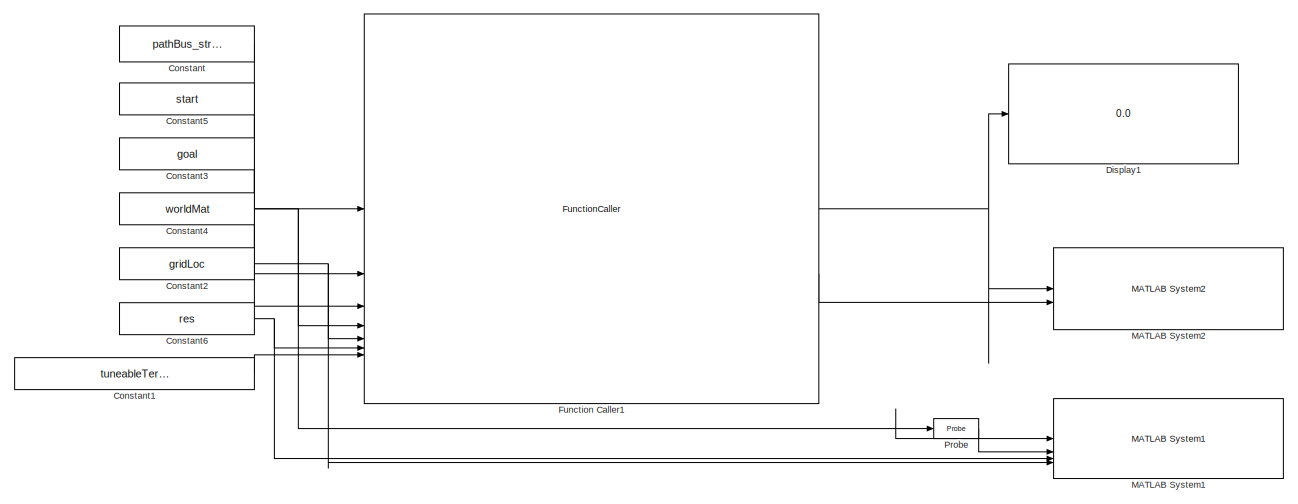
[diagram: root canvas - part 1/2, most of the canvas]
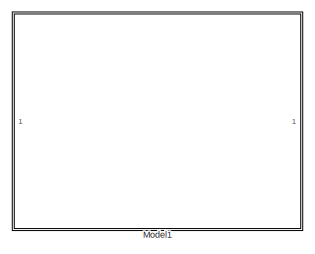
[diagram: root canvas - part 2/2, middle right region]
MODEL slx_bed5b2f71cb7
KIND model
CONFIG AbsTol = auto
CONFIG EnableMultiTasking = off
CONFIG FixedStep = auto
CONFIG InitFcn = routePlanSetup
CONFIG MaxStep = auto
CONFIG MinStep = auto
CONFIG RelTol = 1e-3
CONFIG SampleTimeConstraint = Unconstrained
CONFIG SolverName = FixedStepDiscrete
CONFIG StartTime = 0.0
CONFIG StopTime = 0
BLOCK [Constant] Constant
  OutDataTypeStr = Bus: pathList_fixed_bus
  SampleTime = -1
  Value = pathBus_struct
  VectorParams1D = off
BLOCK [Constant] Constant1
  Value = tuneableTerrainAwareParams.MinTurningRadius
BLOCK [Constant] Constant2
  Value = gridLoc
BLOCK [Constant] Constant3
  Value = goal
BLOCK [Constant] Constant4
  Value = worldMat
BLOCK [Constant] Constant5
  Value = start
BLOCK [Constant] Constant6
  Value = res
BLOCK [Display] Display1
  Decimation = 1
BLOCK [FunctionCaller] Function Caller1
  FunctionPrototype = [refPath,nRefPathRows] = planRoute(pathList,start,goal,worldMat,gridLoc,res,minTurnRadius)
  InputArgumentSpecifications = <Enter example>
  OutputArgumentSpecifications = <Enter example>
BLOCK [Reference] MATLAB System1  REF=roshelperlib/MATLAB System1  (lib defined in slx_3328ea0e13a5)
  SourceBlock = roshelperlib/MATLAB System1
  SourceType = exampleHelperMapVisualizerSys
BLOCK [Reference] MATLAB System2  REF=roshelperlib/MATLAB System2  (lib defined in slx_3328ea0e13a5)
  SourceBlock = roshelperlib/MATLAB System2
  SourceType = exampleHelperPathVisualizerSys
BLOCK [ModelReference] Model1
  ModelNameDialog = extractLocalMap_simfcnsvr.slx
  ModelReferenceVersion = 2.0
  ScheduleRates = on
BLOCK [Probe] Probe
  ProbeComplexSignal = off
  ProbeSampleTime = off
  ProbeSignalDimensions = on
  ProbeWidth = off
LINE Constant1:1 -> Function Caller1:7
NET Constant2:1 -> Function Caller1:5, MATLAB System1:4
LINE Constant3:1 -> Function Caller1:3
NET Constant4:1 -> Function Caller1:4, MATLAB System1:1, Probe:1
LINE Constant5:1 -> Function Caller1:2
NET Constant6:1 -> Function Caller1:6, MATLAB System1:3
LINE Constant:1 -> Function Caller1:1
NET Function Caller1:1 -> Display1:1, MATLAB System2:1
LINE Function Caller1:2 -> MATLAB System2:2
LINE Probe:1 -> MATLAB System1:2
note: NET lines group one-source signal fan-out (src -> all destinations, sorted); 1:1 wires keep LINE
